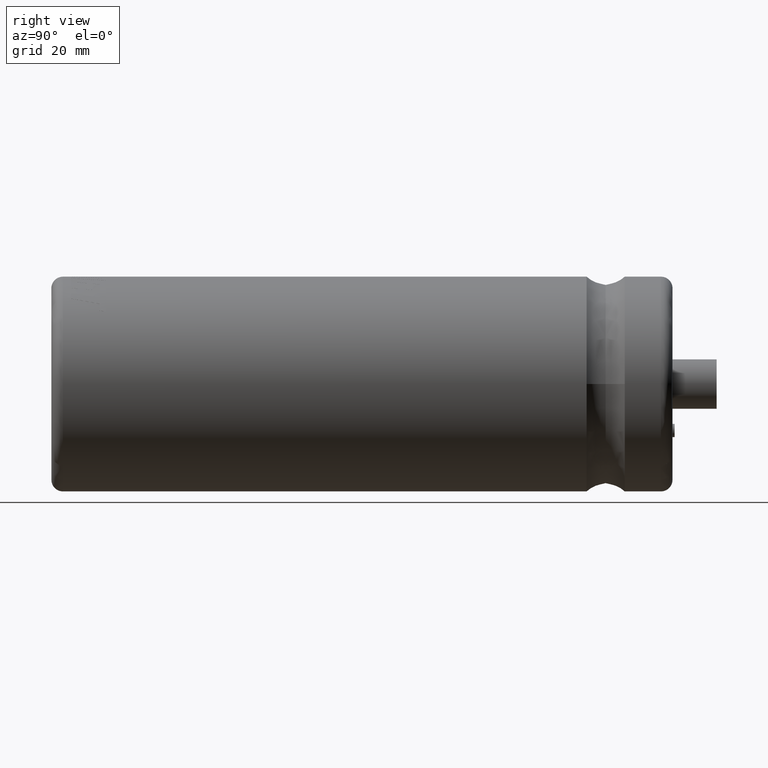
[diagram: clean part render]
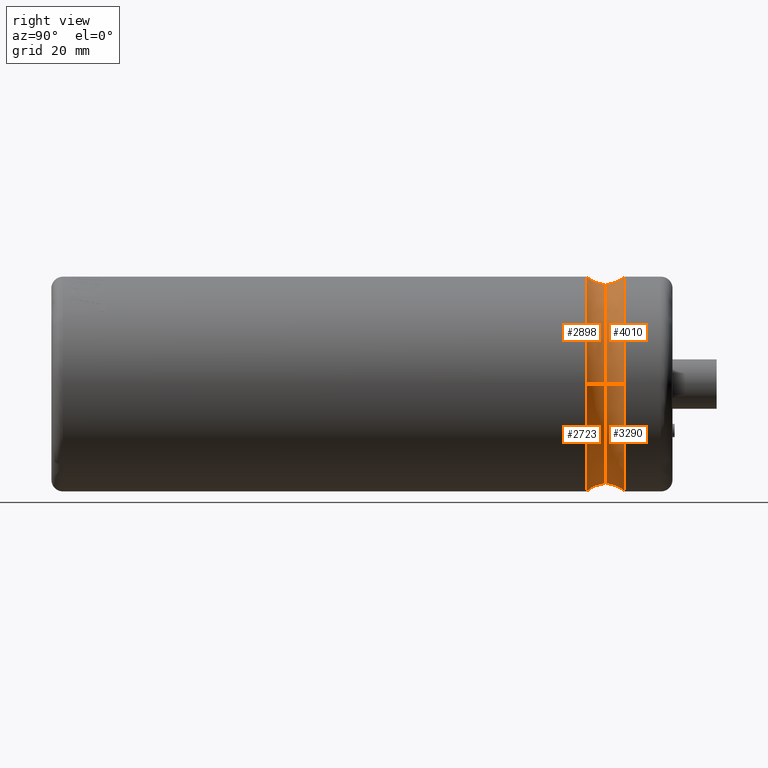
[diagram: same view with one multi-face feature highlighted, each face labeled with its STEP entity id]
A machine part, right view. The highlighted faces form ONE feature: a constant-radius fillet chain: 4 tangent blend faces with common blend radius 4.8037 mm. The faces share edges in the B-rep.
Their STEP definitions:
[1] entity #2898 (Torus):
#17 = VERTEX_POINT ( 'NONE', #401 ) ;
#143 = AXIS2_PLACEMENT_3D ( 'NONE', #1617, #298, #2585 ) ;
#298 = DIRECTION ( 'NONE',  ( -2.656152684848929400E-018, -1.000000000000000000, -0.0000000000000000000 ) ) ;
#367 = DIRECTION ( 'NONE',  ( -1.000000000000000000, 0.0000000000000000000, 0.0000000000000000000 ) ) ;
#401 = CARTESIAN_POINT ( 'NONE',  ( -17.19627799904074200, 95.48145000000002400, 2.105936680877329600E-015 ) ) ;
#446 = ORIENTED_EDGE ( 'NONE', *, *, #964, .F. ) ;
#575 = ORIENTED_EDGE ( 'NONE', *, *, #3859, .F. ) ;
#643 = AXIS2_PLACEMENT_3D ( 'NONE', #1588, #2851, #3853 ) ;
#676 = CIRCLE ( 'NONE', #3406, 4.803722000959250100 ) ;
#880 = ORIENTED_EDGE ( 'NONE', *, *, #3174, .T. ) ;
#964 = EDGE_CURVE ( 'NONE', #4081, #3500, #3155, .T. ) ;
#1071 = CARTESIAN_POINT ( 'NONE',  ( -18.49999999999999600, 92.19120000000002300, 2.265596578422603000E-015 ) ) ;
#1106 = CIRCLE ( 'NONE', #143, 18.49999999999999600 ) ;
#1140 = EDGE_CURVE ( 'NONE', #3500, #4171, #1106, .T. ) ;
#1260 = CIRCLE ( 'NONE', #3300, 4.803722000959250100 ) ;
#1281 = CARTESIAN_POINT ( 'NONE',  ( 2.265596578422603400E-015, 92.19120000000002300, 18.49999999999999600 ) ) ;
#1317 = CARTESIAN_POINT ( 'NONE',  ( 18.49999999999999600, 92.19120000000002300, 0.0000000000000000000 ) ) ;
#1338 = DIRECTION ( 'NONE',  ( 0.0000000000000000000, 0.0000000000000000000, -1.000000000000000000 ) ) ;
#1502 = AXIS2_PLACEMENT_3D ( 'NONE', #4044, #3363, #4030 ) ;
#1541 = CIRCLE ( 'NONE', #1502, 17.19627799904074200 ) ;
#1588 = CARTESIAN_POINT ( 'NONE',  ( 0.0000000000000000000, 95.48145000000002400, 0.0000000000000000000 ) ) ;
#1606 = DIRECTION ( 'NONE',  ( 1.000000000000000000, 0.0000000000000000000, -1.224646799147352700E-016 ) ) ;
#1617 = CARTESIAN_POINT ( 'NONE',  ( 2.448739033994446700E-016, 92.19120000000002300, 0.0000000000000000000 ) ) ;
#1906 = FACE_OUTER_BOUND ( 'NONE', #2487, .T. ) ;
#2012 = CARTESIAN_POINT ( 'NONE',  ( 2.448739033994446700E-016, 92.19120000000002300, 0.0000000000000000000 ) ) ;
#2040 = EDGE_CURVE ( 'NONE', #4081, #3668, #676, .T. ) ;
#2050 = DIRECTION ( 'NONE',  ( 1.000000000000000000, 0.0000000000000000000, 0.0000000000000000000 ) ) ;
#2344 = AXIS2_PLACEMENT_3D ( 'NONE', #2012, #2346, #2050 ) ;
#2346 = DIRECTION ( 'NONE',  ( -2.656152684848929400E-018, -1.000000000000000000, -0.0000000000000000000 ) ) ;
#2348 = ORIENTED_EDGE ( 'NONE', *, *, #1140, .F. ) ;
#2487 = EDGE_LOOP ( 'NONE', ( #2749, #880, #575, #2348, #446 ) ) ;
#2585 = DIRECTION ( 'NONE',  ( 1.000000000000000000, 0.0000000000000000000, 0.0000000000000000000 ) ) ;
#2749 = ORIENTED_EDGE ( 'NONE', *, *, #2040, .T. ) ;
#2851 = DIRECTION ( 'NONE',  ( -2.656152684848929400E-018, -1.000000000000000000, -0.0000000000000000000 ) ) ;
#2898 = ADVANCED_FACE ( 'NONE', ( #1906 ), #3477, .F. ) ;
#2928 = CARTESIAN_POINT ( 'NONE',  ( -21.99999999999999300, 95.48145000000002400, 2.694222958124176000E-015 ) ) ;
#3155 = CIRCLE ( 'NONE', #2344, 18.49999999999999600 ) ;
#3174 = EDGE_CURVE ( 'NONE', #3668, #17, #1541, .T. ) ;
#3202 = DIRECTION ( 'NONE',  ( 1.224646799147353200E-016, -3.252848883546889600E-034, 1.000000000000000000 ) ) ;
#3300 = AXIS2_PLACEMENT_3D ( 'NONE', #2928, #3202, #1606 ) ;
#3363 = DIRECTION ( 'NONE',  ( -2.656152684848929400E-018, -1.000000000000000000, -0.0000000000000000000 ) ) ;
#3406 = AXIS2_PLACEMENT_3D ( 'NONE', #3628, #1338, #367 ) ;
#3477 = TOROIDAL_SURFACE ( 'NONE', #643, 21.99999999999999300, 4.803722000959249200 ) ;
#3500 = VERTEX_POINT ( 'NONE', #1281 ) ;
#3628 = CARTESIAN_POINT ( 'NONE',  ( 21.99999999999999300, 95.48145000000002400, 0.0000000000000000000 ) ) ;
#3668 = VERTEX_POINT ( 'NONE', #3994 ) ;
#3853 = DIRECTION ( 'NONE',  ( 1.000000000000000000, -2.656152684848929400E-018, 0.0000000000000000000 ) ) ;
#3859 = EDGE_CURVE ( 'NONE', #4171, #17, #1260, .T. ) ;
#3994 = CARTESIAN_POINT ( 'NONE',  ( 17.19627799904074200, 95.48145000000002400, 0.0000000000000000000 ) ) ;
#4030 = DIRECTION ( 'NONE',  ( 1.000000000000000000, 0.0000000000000000000, 0.0000000000000000000 ) ) ;
#4044 = CARTESIAN_POINT ( 'NONE',  ( 1.562578174768992300E-033, 95.48145000000002400, 0.0000000000000000000 ) ) ;
#4081 = VERTEX_POINT ( 'NONE', #1317 ) ;
#4171 = VERTEX_POINT ( 'NONE', #1071 ) ;
[2] entity #4010 (Torus):
#17 = VERTEX_POINT ( 'NONE', #401 ) ;
#207 = CIRCLE ( 'NONE', #2588, 4.803722000959250100 ) ;
#305 = CARTESIAN_POINT ( 'NONE',  ( 2.265596578422603000E-015, 98.77170000000002400, 18.49999999999999600 ) ) ;
#327 = DIRECTION ( 'NONE',  ( 1.000000000000000000, 0.0000000000000000000, -1.224646799147352700E-016 ) ) ;
#401 = CARTESIAN_POINT ( 'NONE',  ( -17.19627799904074200, 95.48145000000002400, 2.105936680877329600E-015 ) ) ;
#468 = VERTEX_POINT ( 'NONE', #305 ) ;
#485 = FACE_OUTER_BOUND ( 'NONE', #3608, .T. ) ;
#899 = ORIENTED_EDGE ( 'NONE', *, *, #2282, .T. ) ;
#914 = CARTESIAN_POINT ( 'NONE',  ( 21.99999999999999300, 95.48145000000002400, 0.0000000000000000000 ) ) ;
#955 = DIRECTION ( 'NONE',  ( 1.000000000000000000, 0.0000000000000000000, 0.0000000000000000000 ) ) ;
#971 = AXIS2_PLACEMENT_3D ( 'NONE', #3858, #2565, #3616 ) ;
#1025 = DIRECTION ( 'NONE',  ( -2.656152684848929400E-018, -1.000000000000000000, -0.0000000000000000000 ) ) ;
#1210 = AXIS2_PLACEMENT_3D ( 'NONE', #914, #1280, #3569 ) ;
#1280 = DIRECTION ( 'NONE',  ( 0.0000000000000000000, 0.0000000000000000000, -1.000000000000000000 ) ) ;
#1287 = CARTESIAN_POINT ( 'NONE',  ( -21.99999999999999300, 95.48145000000002400, 2.694222958124176000E-015 ) ) ;
#1502 = AXIS2_PLACEMENT_3D ( 'NONE', #4044, #3363, #4030 ) ;
#1541 = CIRCLE ( 'NONE', #1502, 17.19627799904074200 ) ;
#1556 = EDGE_CURVE ( 'NONE', #3668, #4180, #1769, .T. ) ;
#1656 = CIRCLE ( 'NONE', #2564, 18.49999999999999600 ) ;
#1748 = CARTESIAN_POINT ( 'NONE',  ( 18.49999999999999600, 98.77170000000002400, 0.0000000000000000000 ) ) ;
#1769 = CIRCLE ( 'NONE', #1210, 4.803722000959250100 ) ;
#1956 = CARTESIAN_POINT ( 'NONE',  ( 2.623527161420930200E-016, 98.77170000000002400, 0.0000000000000000000 ) ) ;
#2068 = CIRCLE ( 'NONE', #3239, 18.49999999999999600 ) ;
#2117 = ORIENTED_EDGE ( 'NONE', *, *, #3060, .T. ) ;
#2282 = EDGE_CURVE ( 'NONE', #4180, #468, #2068, .T. ) ;
#2338 = EDGE_CURVE ( 'NONE', #17, #4176, #207, .T. ) ;
#2564 = AXIS2_PLACEMENT_3D ( 'NONE', #3308, #1025, #3998 ) ;
#2565 = DIRECTION ( 'NONE',  ( -2.656152684848929400E-018, -1.000000000000000000, -0.0000000000000000000 ) ) ;
#2588 = AXIS2_PLACEMENT_3D ( 'NONE', #1287, #2927, #327 ) ;
#2686 = CARTESIAN_POINT ( 'NONE',  ( -18.49999999999999600, 98.77170000000002400, 2.265596578422603000E-015 ) ) ;
#2927 = DIRECTION ( 'NONE',  ( 1.224646799147353200E-016, -3.252848883546889600E-034, 1.000000000000000000 ) ) ;
#3060 = EDGE_CURVE ( 'NONE', #468, #4176, #1656, .T. ) ;
#3174 = EDGE_CURVE ( 'NONE', #3668, #17, #1541, .T. ) ;
#3239 = AXIS2_PLACEMENT_3D ( 'NONE', #1956, #4238, #955 ) ;
#3308 = CARTESIAN_POINT ( 'NONE',  ( 2.623527161420930200E-016, 98.77170000000002400, 0.0000000000000000000 ) ) ;
#3363 = DIRECTION ( 'NONE',  ( -2.656152684848929400E-018, -1.000000000000000000, -0.0000000000000000000 ) ) ;
#3560 = TOROIDAL_SURFACE ( 'NONE', #971, 21.99999999999999300, 4.803722000959249200 ) ;
#3569 = DIRECTION ( 'NONE',  ( -1.000000000000000000, 0.0000000000000000000, 0.0000000000000000000 ) ) ;
#3608 = EDGE_LOOP ( 'NONE', ( #3927, #3809, #899, #2117, #3929 ) ) ;
#3616 = DIRECTION ( 'NONE',  ( 1.000000000000000000, -2.656152684848929400E-018, 0.0000000000000000000 ) ) ;
#3668 = VERTEX_POINT ( 'NONE', #3994 ) ;
#3809 = ORIENTED_EDGE ( 'NONE', *, *, #1556, .T. ) ;
#3858 = CARTESIAN_POINT ( 'NONE',  ( 0.0000000000000000000, 95.48145000000002400, 0.0000000000000000000 ) ) ;
#3927 = ORIENTED_EDGE ( 'NONE', *, *, #3174, .F. ) ;
#3929 = ORIENTED_EDGE ( 'NONE', *, *, #2338, .F. ) ;
#3994 = CARTESIAN_POINT ( 'NONE',  ( 17.19627799904074200, 95.48145000000002400, 0.0000000000000000000 ) ) ;
#3998 = DIRECTION ( 'NONE',  ( 1.000000000000000000, 0.0000000000000000000, 0.0000000000000000000 ) ) ;
#4010 = ADVANCED_FACE ( 'NONE', ( #485 ), #3560, .F. ) ;
#4030 = DIRECTION ( 'NONE',  ( 1.000000000000000000, 0.0000000000000000000, 0.0000000000000000000 ) ) ;
#4044 = CARTESIAN_POINT ( 'NONE',  ( 1.562578174768992300E-033, 95.48145000000002400, 0.0000000000000000000 ) ) ;
#4176 = VERTEX_POINT ( 'NONE', #2686 ) ;
#4180 = VERTEX_POINT ( 'NONE', #1748 ) ;
#4238 = DIRECTION ( 'NONE',  ( -2.656152684848929400E-018, -1.000000000000000000, -0.0000000000000000000 ) ) ;
[3] entity #3290 (Torus):
#17 = VERTEX_POINT ( 'NONE', #401 ) ;
#20 = DIRECTION ( 'NONE',  ( -2.656152684848929400E-018, -1.000000000000000000, -0.0000000000000000000 ) ) ;
#138 = EDGE_LOOP ( 'NONE', ( #3873, #2197, #3255, #278, #1463 ) ) ;
#207 = CIRCLE ( 'NONE', #2588, 4.803722000959250100 ) ;
#278 = ORIENTED_EDGE ( 'NONE', *, *, #2405, .T. ) ;
#287 = AXIS2_PLACEMENT_3D ( 'NONE', #2601, #1274, #3264 ) ;
#327 = DIRECTION ( 'NONE',  ( 1.000000000000000000, 0.0000000000000000000, -1.224646799147352700E-016 ) ) ;
#330 = DIRECTION ( 'NONE',  ( -2.656152684848929400E-018, -1.000000000000000000, -0.0000000000000000000 ) ) ;
#337 = EDGE_CURVE ( 'NONE', #4176, #3696, #3111, .T. ) ;
#401 = CARTESIAN_POINT ( 'NONE',  ( -17.19627799904074200, 95.48145000000002400, 2.105936680877329600E-015 ) ) ;
#914 = CARTESIAN_POINT ( 'NONE',  ( 21.99999999999999300, 95.48145000000002400, 0.0000000000000000000 ) ) ;
#1034 = CARTESIAN_POINT ( 'NONE',  ( 0.0000000000000000000, 98.77170000000002400, -18.49999999999999600 ) ) ;
#1161 = TOROIDAL_SURFACE ( 'NONE', #3322, 21.99999999999999300, 4.803722000959249200 ) ;
#1210 = AXIS2_PLACEMENT_3D ( 'NONE', #914, #1280, #3569 ) ;
#1274 = DIRECTION ( 'NONE',  ( -2.656152684848929400E-018, -1.000000000000000000, -0.0000000000000000000 ) ) ;
#1280 = DIRECTION ( 'NONE',  ( 0.0000000000000000000, 0.0000000000000000000, -1.000000000000000000 ) ) ;
#1287 = CARTESIAN_POINT ( 'NONE',  ( -21.99999999999999300, 95.48145000000002400, 2.694222958124176000E-015 ) ) ;
#1463 = ORIENTED_EDGE ( 'NONE', *, *, #1556, .F. ) ;
#1556 = EDGE_CURVE ( 'NONE', #3668, #4180, #1769, .T. ) ;
#1748 = CARTESIAN_POINT ( 'NONE',  ( 18.49999999999999600, 98.77170000000002400, 0.0000000000000000000 ) ) ;
#1769 = CIRCLE ( 'NONE', #1210, 4.803722000959250100 ) ;
#2006 = CARTESIAN_POINT ( 'NONE',  ( 2.623527161420930200E-016, 98.77170000000002400, 0.0000000000000000000 ) ) ;
#2197 = ORIENTED_EDGE ( 'NONE', *, *, #2338, .T. ) ;
#2275 = DIRECTION ( 'NONE',  ( 1.000000000000000000, 0.0000000000000000000, 0.0000000000000000000 ) ) ;
#2308 = FACE_OUTER_BOUND ( 'NONE', #138, .T. ) ;
#2338 = EDGE_CURVE ( 'NONE', #17, #4176, #207, .T. ) ;
#2405 = EDGE_CURVE ( 'NONE', #3696, #4180, #3377, .T. ) ;
#2588 = AXIS2_PLACEMENT_3D ( 'NONE', #1287, #2927, #327 ) ;
#2601 = CARTESIAN_POINT ( 'NONE',  ( 1.562578174768992300E-033, 95.48145000000002400, 0.0000000000000000000 ) ) ;
#2686 = CARTESIAN_POINT ( 'NONE',  ( -18.49999999999999600, 98.77170000000002400, 2.265596578422603000E-015 ) ) ;
#2811 = AXIS2_PLACEMENT_3D ( 'NONE', #2006, #20, #3321 ) ;
#2927 = DIRECTION ( 'NONE',  ( 1.224646799147353200E-016, -3.252848883546889600E-034, 1.000000000000000000 ) ) ;
#2941 = EDGE_CURVE ( 'NONE', #17, #3668, #3887, .T. ) ;
#3089 = DIRECTION ( 'NONE',  ( -2.656152684848929400E-018, -1.000000000000000000, -0.0000000000000000000 ) ) ;
#3111 = CIRCLE ( 'NONE', #3640, 18.49999999999999600 ) ;
#3142 = DIRECTION ( 'NONE',  ( 1.000000000000000000, -2.656152684848929400E-018, 0.0000000000000000000 ) ) ;
#3255 = ORIENTED_EDGE ( 'NONE', *, *, #337, .T. ) ;
#3264 = DIRECTION ( 'NONE',  ( 1.000000000000000000, 0.0000000000000000000, 0.0000000000000000000 ) ) ;
#3290 = ADVANCED_FACE ( 'NONE', ( #2308 ), #1161, .F. ) ;
#3321 = DIRECTION ( 'NONE',  ( 1.000000000000000000, 0.0000000000000000000, 0.0000000000000000000 ) ) ;
#3322 = AXIS2_PLACEMENT_3D ( 'NONE', #3791, #3089, #3142 ) ;
#3377 = CIRCLE ( 'NONE', #2811, 18.49999999999999600 ) ;
#3569 = DIRECTION ( 'NONE',  ( -1.000000000000000000, 0.0000000000000000000, 0.0000000000000000000 ) ) ;
#3640 = AXIS2_PLACEMENT_3D ( 'NONE', #3894, #330, #2275 ) ;
#3668 = VERTEX_POINT ( 'NONE', #3994 ) ;
#3696 = VERTEX_POINT ( 'NONE', #1034 ) ;
#3791 = CARTESIAN_POINT ( 'NONE',  ( 0.0000000000000000000, 95.48145000000002400, 0.0000000000000000000 ) ) ;
#3873 = ORIENTED_EDGE ( 'NONE', *, *, #2941, .F. ) ;
#3887 = CIRCLE ( 'NONE', #287, 17.19627799904074200 ) ;
#3894 = CARTESIAN_POINT ( 'NONE',  ( 2.623527161420930200E-016, 98.77170000000002400, 0.0000000000000000000 ) ) ;
#3994 = CARTESIAN_POINT ( 'NONE',  ( 17.19627799904074200, 95.48145000000002400, 0.0000000000000000000 ) ) ;
#4176 = VERTEX_POINT ( 'NONE', #2686 ) ;
#4180 = VERTEX_POINT ( 'NONE', #1748 ) ;
[4] entity #2723 (Torus):
#7 = EDGE_LOOP ( 'NONE', ( #2284, #1199, #3920, #263, #390 ) ) ;
#17 = VERTEX_POINT ( 'NONE', #401 ) ;
#100 = TOROIDAL_SURFACE ( 'NONE', #587, 21.99999999999999300, 4.803722000959249200 ) ;
#263 = ORIENTED_EDGE ( 'NONE', *, *, #1053, .F. ) ;
#287 = AXIS2_PLACEMENT_3D ( 'NONE', #2601, #1274, #3264 ) ;
#367 = DIRECTION ( 'NONE',  ( -1.000000000000000000, 0.0000000000000000000, 0.0000000000000000000 ) ) ;
#390 = ORIENTED_EDGE ( 'NONE', *, *, #2970, .F. ) ;
#401 = CARTESIAN_POINT ( 'NONE',  ( -17.19627799904074200, 95.48145000000002400, 2.105936680877329600E-015 ) ) ;
#587 = AXIS2_PLACEMENT_3D ( 'NONE', #4151, #903, #2193 ) ;
#654 = DIRECTION ( 'NONE',  ( 1.000000000000000000, 0.0000000000000000000, 0.0000000000000000000 ) ) ;
#676 = CIRCLE ( 'NONE', #3406, 4.803722000959250100 ) ;
#840 = CARTESIAN_POINT ( 'NONE',  ( 2.448739033994446700E-016, 92.19120000000002300, 0.0000000000000000000 ) ) ;
#862 = AXIS2_PLACEMENT_3D ( 'NONE', #3889, #936, #654 ) ;
#903 = DIRECTION ( 'NONE',  ( -2.656152684848929400E-018, -1.000000000000000000, -0.0000000000000000000 ) ) ;
#936 = DIRECTION ( 'NONE',  ( -2.656152684848929400E-018, -1.000000000000000000, -0.0000000000000000000 ) ) ;
#1005 = CIRCLE ( 'NONE', #1406, 18.49999999999999600 ) ;
#1053 = EDGE_CURVE ( 'NONE', #1791, #4081, #1005, .T. ) ;
#1071 = CARTESIAN_POINT ( 'NONE',  ( -18.49999999999999600, 92.19120000000002300, 2.265596578422603000E-015 ) ) ;
#1199 = ORIENTED_EDGE ( 'NONE', *, *, #2941, .T. ) ;
#1212 = DIRECTION ( 'NONE',  ( 1.000000000000000000, 0.0000000000000000000, 0.0000000000000000000 ) ) ;
#1260 = CIRCLE ( 'NONE', #3300, 4.803722000959250100 ) ;
#1274 = DIRECTION ( 'NONE',  ( -2.656152684848929400E-018, -1.000000000000000000, -0.0000000000000000000 ) ) ;
#1317 = CARTESIAN_POINT ( 'NONE',  ( 18.49999999999999600, 92.19120000000002300, 0.0000000000000000000 ) ) ;
#1338 = DIRECTION ( 'NONE',  ( 0.0000000000000000000, 0.0000000000000000000, -1.000000000000000000 ) ) ;
#1406 = AXIS2_PLACEMENT_3D ( 'NONE', #840, #2852, #1212 ) ;
#1606 = DIRECTION ( 'NONE',  ( 1.000000000000000000, 0.0000000000000000000, -1.224646799147352700E-016 ) ) ;
#1791 = VERTEX_POINT ( 'NONE', #3747 ) ;
#2005 = FACE_OUTER_BOUND ( 'NONE', #7, .T. ) ;
#2040 = EDGE_CURVE ( 'NONE', #4081, #3668, #676, .T. ) ;
#2193 = DIRECTION ( 'NONE',  ( 1.000000000000000000, -2.656152684848929400E-018, 0.0000000000000000000 ) ) ;
#2284 = ORIENTED_EDGE ( 'NONE', *, *, #3859, .T. ) ;
#2601 = CARTESIAN_POINT ( 'NONE',  ( 1.562578174768992300E-033, 95.48145000000002400, 0.0000000000000000000 ) ) ;
#2723 = ADVANCED_FACE ( 'NONE', ( #2005 ), #100, .F. ) ;
#2852 = DIRECTION ( 'NONE',  ( -2.656152684848929400E-018, -1.000000000000000000, -0.0000000000000000000 ) ) ;
#2928 = CARTESIAN_POINT ( 'NONE',  ( -21.99999999999999300, 95.48145000000002400, 2.694222958124176000E-015 ) ) ;
#2941 = EDGE_CURVE ( 'NONE', #17, #3668, #3887, .T. ) ;
#2970 = EDGE_CURVE ( 'NONE', #4171, #1791, #3108, .T. ) ;
#3108 = CIRCLE ( 'NONE', #862, 18.49999999999999600 ) ;
#3202 = DIRECTION ( 'NONE',  ( 1.224646799147353200E-016, -3.252848883546889600E-034, 1.000000000000000000 ) ) ;
#3264 = DIRECTION ( 'NONE',  ( 1.000000000000000000, 0.0000000000000000000, 0.0000000000000000000 ) ) ;
#3300 = AXIS2_PLACEMENT_3D ( 'NONE', #2928, #3202, #1606 ) ;
#3406 = AXIS2_PLACEMENT_3D ( 'NONE', #3628, #1338, #367 ) ;
#3628 = CARTESIAN_POINT ( 'NONE',  ( 21.99999999999999300, 95.48145000000002400, 0.0000000000000000000 ) ) ;
#3668 = VERTEX_POINT ( 'NONE', #3994 ) ;
#3747 = CARTESIAN_POINT ( 'NONE',  ( 0.0000000000000000000, 92.19120000000002300, -18.49999999999999600 ) ) ;
#3859 = EDGE_CURVE ( 'NONE', #4171, #17, #1260, .T. ) ;
#3887 = CIRCLE ( 'NONE', #287, 17.19627799904074200 ) ;
#3889 = CARTESIAN_POINT ( 'NONE',  ( 2.448739033994446700E-016, 92.19120000000002300, 0.0000000000000000000 ) ) ;
#3920 = ORIENTED_EDGE ( 'NONE', *, *, #2040, .F. ) ;
#3994 = CARTESIAN_POINT ( 'NONE',  ( 17.19627799904074200, 95.48145000000002400, 0.0000000000000000000 ) ) ;
#4081 = VERTEX_POINT ( 'NONE', #1317 ) ;
#4151 = CARTESIAN_POINT ( 'NONE',  ( 0.0000000000000000000, 95.48145000000002400, 0.0000000000000000000 ) ) ;
#4171 = VERTEX_POINT ( 'NONE', #1071 ) ;